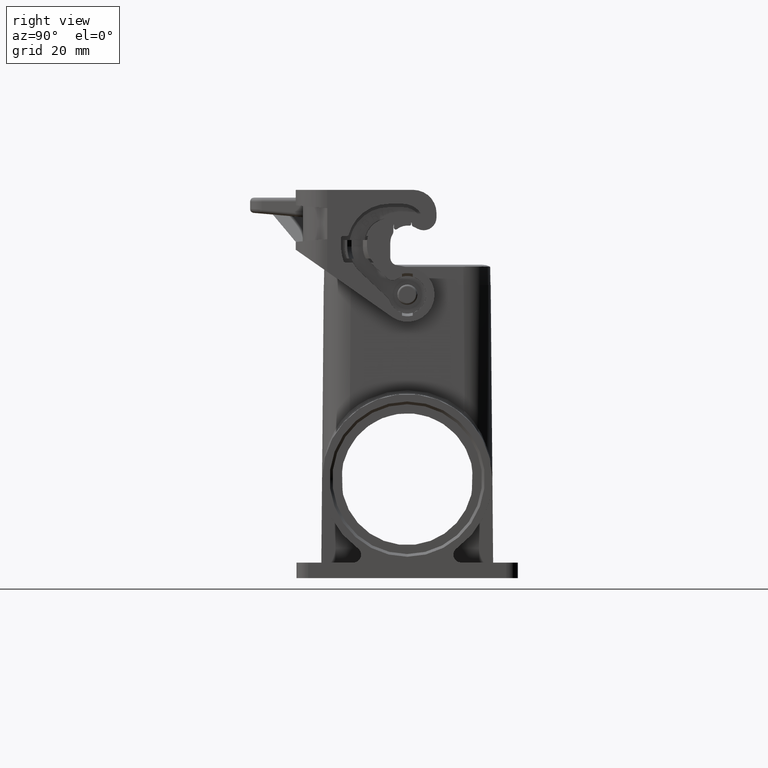
[diagram: clean part render]
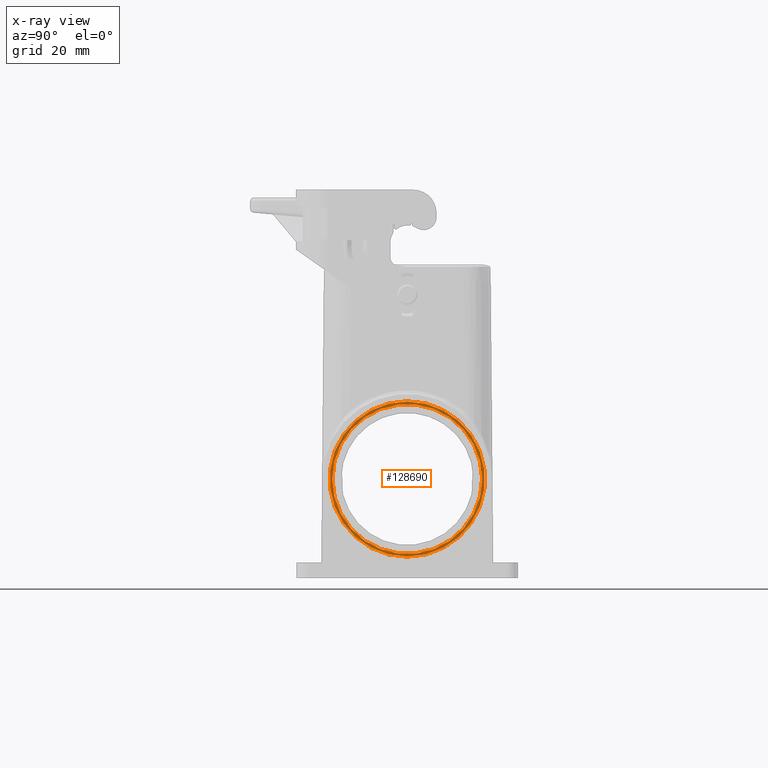
[diagram: x-ray — body ghosted, one internal face saturated and labeled with its STEP entity id]
A machine part, right view, then the same camera in x-ray: the body is ghosted and one INTERNAL B-rep face — a face not visible from any outside direction — is saturated and labeled: STEP entity #128690.
In plain terms, the highlighted planar face has unit normal (-1, 0, 0).
Its self-contained STEP definition (entity closure, byte-faithful):
#108820=CARTESIAN_POINT('',(2.31857799999995,40.20508,4.49999999999998))
;
#108830=VERTEX_POINT('',#108820);
#108920=CARTESIAN_POINT('',(2.31857799999995,40.20508,44.5));
#108930=VERTEX_POINT('',#108920);
#108960=CARTESIAN_POINT('',(2.31857799999995,40.20508,24.5));
#108970=DIRECTION('',(-1.,0.,0.));
#108980=DIRECTION('',(0.,0.,-1.));
#108990=AXIS2_PLACEMENT_3D('',#108960,#108970,#108980);
#109000=CIRCLE('',#108990,20.);
#109010=EDGE_CURVE('',#108930,#108830,#109000,.T.);
#128440=CARTESIAN_POINT('',(2.31857799999995,40.20508,5.49999999999998))
;
#128450=DIRECTION('',(1.,-0.,0.));
#128460=DIRECTION('',(0.,0.,-1.));
#128470=AXIS2_PLACEMENT_3D('',#128440,#128450,#128460);
#128480=PLANE('',#128470);
#128490=CARTESIAN_POINT('',(2.31857799999995,40.20508,24.5));
#128500=DIRECTION('',(1.,0.,0.));
#128510=DIRECTION('',(0.,-1.,0.));
#128520=AXIS2_PLACEMENT_3D('',#128490,#128500,#128510);
#128530=CIRCLE('',#128520,19.3);
#128540=CARTESIAN_POINT('',(2.31857799999995,20.90508,24.5));
#128550=VERTEX_POINT('',#128540);
#128560=CARTESIAN_POINT('',(2.31857799999995,59.50508,24.5));
#128570=VERTEX_POINT('',#128560);
#128580=EDGE_CURVE('',#128550,#128570,#128530,.T.);
#128590=ORIENTED_EDGE('',*,*,#128580,.T.);
#128600=EDGE_CURVE('',#128570,#128550,#128530,.T.);
#128610=ORIENTED_EDGE('',*,*,#128600,.T.);
#128620=EDGE_LOOP('',(#128610,#128590));
#128630=FACE_BOUND('',#128620,.T.);
#128640=EDGE_CURVE('',#108830,#108930,#109000,.T.);
#128650=ORIENTED_EDGE('',*,*,#128640,.T.);
#128660=ORIENTED_EDGE('',*,*,#109010,.T.);
#128670=EDGE_LOOP('',(#128660,#128650));
#128680=FACE_OUTER_BOUND('',#128670,.T.);
#128690=ADVANCED_FACE('',(#128630,#128680),#128480,.F.);